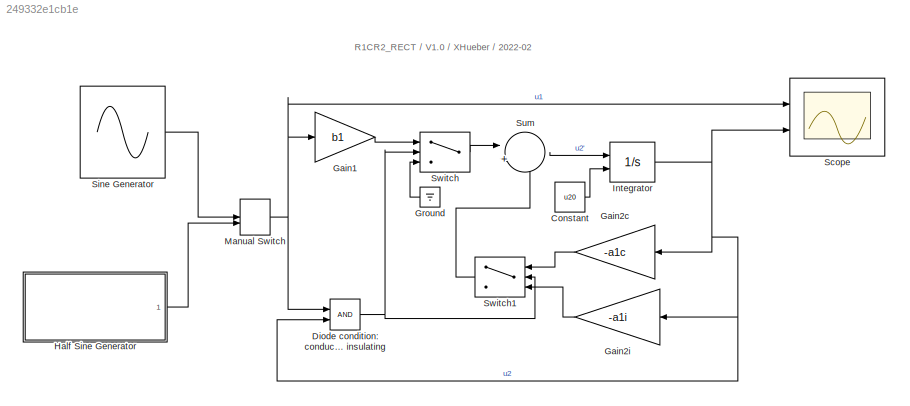
MODEL slx_249332e1cb1e
KIND model
CONFIG AbsTol = auto
CONFIG EnableMultiTasking = off
CONFIG FixedStep = 0.01
CONFIG InitFcn = u20 = 0;\nR1 = 250;\nR2 = 9750;\nC = 220e-6;\n\nb1 = 1/(R1*C);\na1c = 1/(((R1*R2)/(R1+R2))*C);\na1i = 1/(R2*C);
CONFIG MaxStep = auto
CONFIG MinStep = auto
CONFIG RelTol = 1e-3
CONFIG SampleTimeConstraint = Unconstrained
CONFIG SolverName = FixedStepAuto
CONFIG StartTime = 0.0
CONFIG StopTime = 4
WORKSPACE source: mxarray member
WORKSPACE C = 0.00022
WORKSPACE R1 = 250
WORKSPACE R1_R2 = 243.75
WORKSPACE R2 = 9750
WORKSPACE x = 1
WORKSPACE x1 = 0
BLOCK [Constant] Constant 
  Value = u20
BLOCK [RelationalOperator] Diode condition: conducting or insulating
  InputSameDT = off
  OutDataTypeStr = boolean
  Ports = [2, 1]
  RndMeth = Simplest
BLOCK [Gain] Gain1 
  Gain = b1
BLOCK [Gain] Gain2c
  Gain = -a1c
BLOCK [Gain] Gain2i
  Gain = -a1i
BLOCK [Ground] Ground 
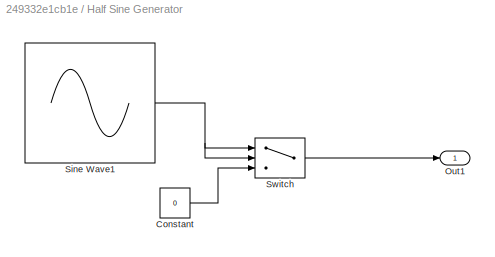
BLOCK [SubSystem] Half Sine Generator
  Ports = [0, 1]
  RequestExecContextInheritance = off
BLOCK [Constant] Half Sine Generator/Constant
  Value = 0
BLOCK [Outport] Half Sine Generator/Out1
BLOCK [Sin] Half Sine Generator/Sine Wave1
  Amplitude = 130
  Frequency = 2*pi
  Ports = [0, 1]
  SampleTime = 0
BLOCK [Switch] Half Sine Generator/Switch
  Criteria = u2 > Threshold
  InputSameDT = off
  SaturateOnIntegerOverflow = off
BLOCK [Integrator] Integrator
  InitialConditionSource = external
  Ports = [2, 1]
BLOCK [ManualSwitch] Manual Switch
BLOCK [Scope] Scope 
  Floating = off
  NumInputPorts = 2
  Ports = [2]
  ScopeSpecificationString = Simulink.scopes.TimeScopeBlockCfg('CurrentConfiguration', extmgr.ConfigurationSet(extmgr.Configuration('Core','General UI',true),extmgr.Configuration('Core','Source UI',true),extmgr.Configuration('Sources','WiredSimulink',true),extmgr.Configuration('Visuals','Time Domain',true,'SerializedDisplays',{struct('MinYLimReal','-162.5','MaxYLimReal','162.5','YLabelReal','','MinYLimMag',' 0.00000','MaxYLim...<+1989ch>
BLOCK [Sin] Sine Generator
  Amplitude = 130
  Frequency = 2*pi
  Ports = [0, 1]
  SampleTime = 0
BLOCK [Sum] Sum
  Inputs = |++
  Ports = [2, 1]
BLOCK [Switch] Switch 
  Criteria = u2 > Threshold
  InputSameDT = off
  SaturateOnIntegerOverflow = off
BLOCK [Switch] Switch1 
  Criteria = u2 > Threshold
  InputSameDT = off
  NameLocation = top
  SaturateOnIntegerOverflow = off
ANNOTATION (root): R1CR2_RECT / V1.0 / XHueber / 2022-02
LINE Constant :1 -> Integrator:2
NET Diode condition: conducting or insulating:1 -> Switch :2, Switch1 :2
LINE Gain1 :1 -> Switch :1
LINE Gain2c:1 -> Switch1 :1
LINE Gain2i:1 -> Switch1 :3
LINE Ground :1 -> Switch :3
LINE Half Sine Generator/Constant:1 -> Half Sine Generator/Switch:3
NET Half Sine Generator/Sine Wave1:1 -> Half Sine Generator/Switch:1, Half Sine Generator/Switch:2
LINE Half Sine Generator/Switch:1 -> Half Sine Generator/Out1:1
LINE Half Sine Generator:1 -> Manual Switch:2
NET Integrator:1 -> Diode condition: conducting or insulating:2, Gain2c:1, Gain2i:1, Scope :2
NET Manual Switch:1 -> Diode condition: conducting or insulating:1, Gain1 :1, Scope :1
LINE Sine Generator:1 -> Manual Switch:1
LINE Sum:1 -> Integrator:1
LINE Switch :1 -> Sum:1
LINE Switch1 :1 -> Sum:2
note: NET lines group one-source signal fan-out (src -> all destinations, sorted); 1:1 wires keep LINE
